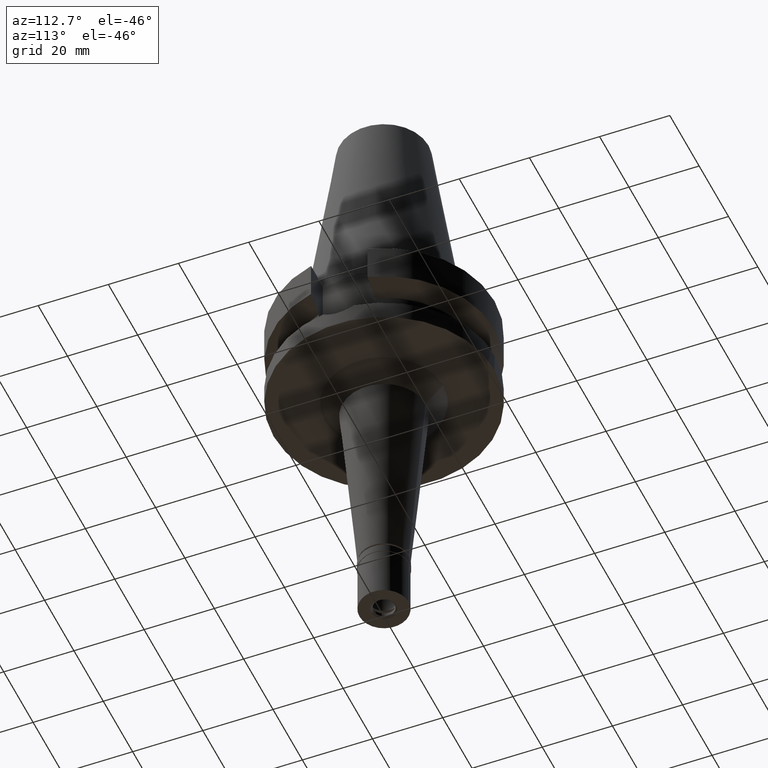
[diagram: clean part render]
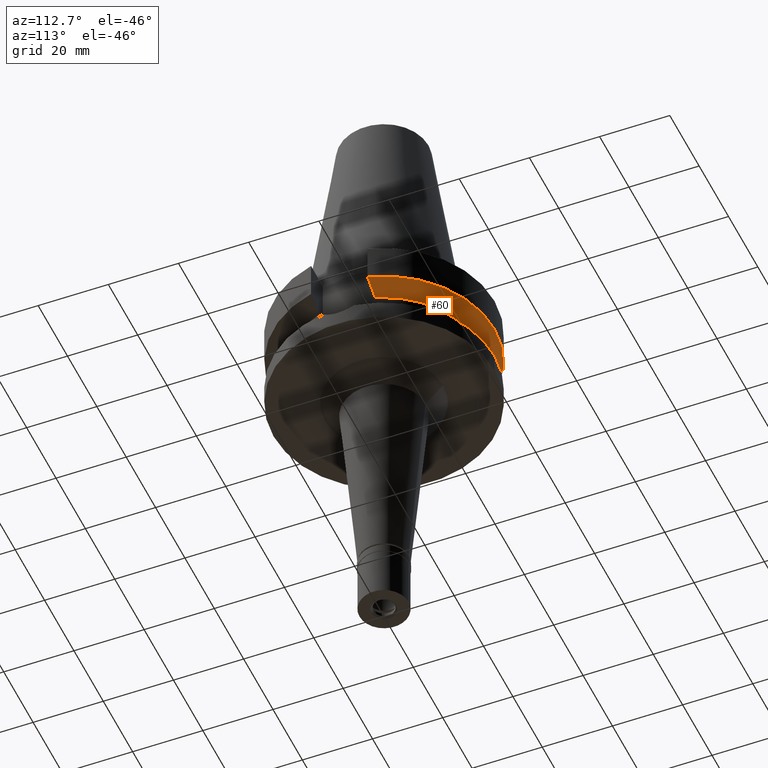
[diagram: same view with one face highlighted and labeled with its STEP entity id]
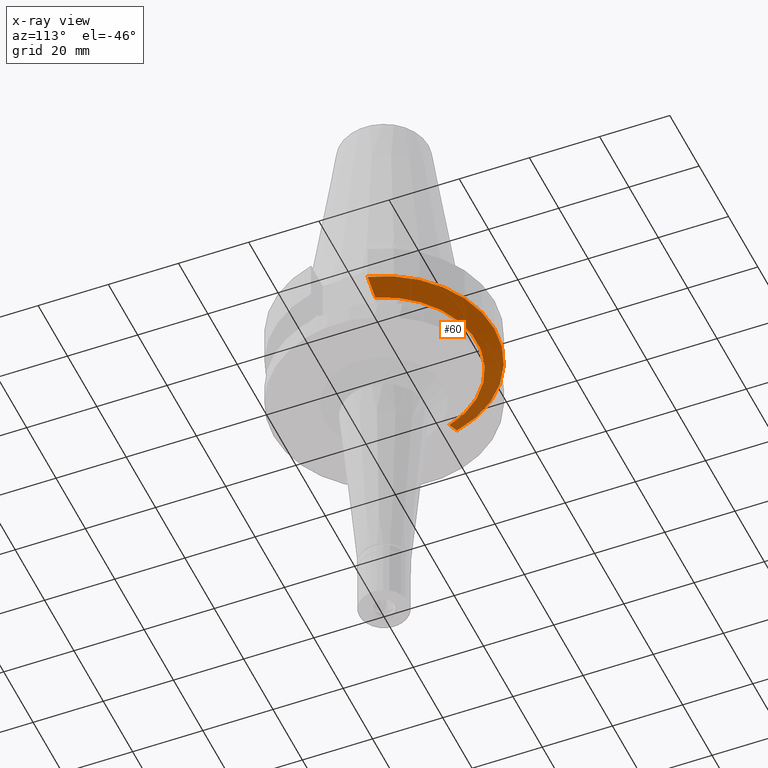
[diagram: x-ray of the same camera — body ghosted, the highlighted face saturated]
A machine part, auxiliary view. The second image highlights one B-rep face of the part: STEP entity #60.
The next image is the same camera in x-ray: the body ghosted, the highlighted face saturated — about 6% of this face is hidden behind the body in this view.
In plain terms, the highlighted conical surface has half-angle 60 deg.
Its self-contained STEP definition (entity closure, byte-faithful):
#35 = DIRECTION ( 'NONE',  ( 0.0000000000000000000, 1.000000000000000000, 0.0000000000000000000 ) ) ;
#60 = ADVANCED_FACE ( 'NONE', ( #323 ), #2587, .T. ) ;
#82 = CARTESIAN_POINT ( 'NONE',  ( 0.0000000000000000000, 1.065333950388000029E-14, -11.56550565266999975 ) ) ;
#126 = CARTESIAN_POINT ( 'NONE',  ( -26.83758146188605664, 8.050003174647279991, -13.57772736427528315 ) ) ;
#246 = EDGE_CURVE ( 'NONE', #2676, #2908, #534, .T. ) ;
#284 = ORIENTED_EDGE ( 'NONE', *, *, #1792, .F. ) ;
#323 = FACE_OUTER_BOUND ( 'NONE', #2919, .T. ) ;
#427 = B_SPLINE_CURVE_WITH_KNOTS ( 'NONE', 3,
 ( #505, #1141, #922, #2766 ),
 .UNSPECIFIED., .F., .F.,
 ( 4, 4 ),
 ( 0.0000000000000000000, 1.000000000000000000 ),
 .UNSPECIFIED. ) ;
#433 = ORIENTED_EDGE ( 'NONE', *, *, #246, .F. ) ;
#505 = CARTESIAN_POINT ( 'NONE',  ( 30.45402291378999848, 8.049999277400001318, -11.56551216098000090 ) ) ;
#534 = CIRCLE ( 'NONE', #2193, 26.50000000000000711 ) ;
#606 = CARTESIAN_POINT ( 'NONE',  ( -25.24772216402000424, 8.050001585612999833, -14.45224488312999966 ) ) ;
#716 = CIRCLE ( 'NONE', #2385, 31.50000000000000000 ) ;
#906 = CARTESIAN_POINT ( 'NONE',  ( 30.45402291378999848, 8.049999277400001318, -11.56551216098000090 ) ) ;
#922 = CARTESIAN_POINT ( 'NONE',  ( 26.83754615457871395, 8.049990819896844840, -13.57774888434048499 ) ) ;
#924 = VERTEX_POINT ( 'NONE', #906 ) ;
#1016 = CARTESIAN_POINT ( 'NONE',  ( 0.0000000000000000000, 1.065333950388000029E-14, -13.00888132564000088 ) ) ;
#1141 = CARTESIAN_POINT ( 'NONE',  ( 28.57292328512617985, 8.049998555742469364, -12.61549605845261901 ) ) ;
#1188 = ORIENTED_EDGE ( 'NONE', *, *, #2015, .T. ) ;
#1259 = DIRECTION ( 'NONE',  ( 0.0000000000000000000, 0.0000000000000000000, 1.000000000000000000 ) ) ;
#1311 = DIRECTION ( 'NONE',  ( -0.9527442516822307583, 0.3037735849057093818, 0.0000000000000000000 ) ) ;
#1462 = DIRECTION ( 'NONE',  ( 0.0000000000000000000, 0.0000000000000000000, 1.000000000000000000 ) ) ;
#1545 = CARTESIAN_POINT ( 'NONE',  ( 0.0000000000000000000, 1.065333950388000029E-14, -14.45225699861000024 ) ) ;
#1567 = VERTEX_POINT ( 'NONE', #2520 ) ;
#1613 = EDGE_CURVE ( 'NONE', #924, #2908, #427, .T. ) ;
#1692 = DIRECTION ( 'NONE',  ( 0.0000000000000000000, 1.000000000000000000, 0.0000000000000000000 ) ) ;
#1719 = AXIS2_PLACEMENT_3D ( 'NONE', #1016, #1259, #1692 ) ;
#1731 = CARTESIAN_POINT ( 'NONE',  ( -28.57295869380321918, 8.050008283491248307, -12.61547481443707497 ) ) ;
#1792 = EDGE_CURVE ( 'NONE', #924, #1567, #716, .T. ) ;
#1984 = DIRECTION ( 'NONE',  ( 0.0000000000000000000, 0.0000000000000000000, -1.000000000000000000 ) ) ;
#2015 = EDGE_CURVE ( 'NONE', #2676, #1567, #2762, .T. ) ;
#2188 = CARTESIAN_POINT ( 'NONE',  ( 25.24772413146000005, 8.049995415026000245, -14.45229203379999916 ) ) ;
#2193 = AXIS2_PLACEMENT_3D ( 'NONE', #1545, #1984, #1311 ) ;
#2203 = ORIENTED_EDGE ( 'NONE', *, *, #1613, .T. ) ;
#2385 = AXIS2_PLACEMENT_3D ( 'NONE', #82, #1462, #35 ) ;
#2520 = CARTESIAN_POINT ( 'NONE',  ( -30.45402162731999951, 8.050004144262000949, -11.56546832291999927 ) ) ;
#2587 = CONICAL_SURFACE ( 'NONE', #1719, 29.00000000000000000, 1.047197551196400456 ) ;
#2656 = CARTESIAN_POINT ( 'NONE',  ( -30.45402162731999951, 8.050004144262000949, -11.56546832291999927 ) ) ;
#2676 = VERTEX_POINT ( 'NONE', #2705 ) ;
#2705 = CARTESIAN_POINT ( 'NONE',  ( -25.24772216402000424, 8.050001585612999833, -14.45224488312999966 ) ) ;
#2762 = B_SPLINE_CURVE_WITH_KNOTS ( 'NONE', 3,
 ( #606, #126, #1731, #2656 ),
 .UNSPECIFIED., .F., .F.,
 ( 4, 4 ),
 ( 0.0000000000000000000, 1.000000000000000000 ),
 .UNSPECIFIED. ) ;
#2766 = CARTESIAN_POINT ( 'NONE',  ( 25.24772413146000005, 8.049995415026000245, -14.45229203379999916 ) ) ;
#2908 = VERTEX_POINT ( 'NONE', #2188 ) ;
#2919 = EDGE_LOOP ( 'NONE', ( #284, #2203, #433, #1188 ) ) ;